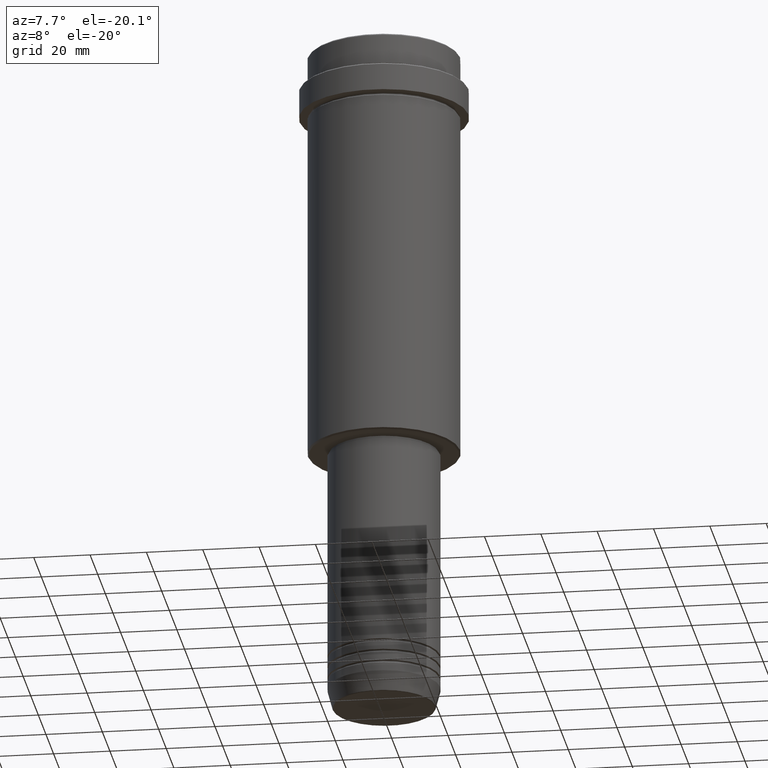
[diagram: clean part render]
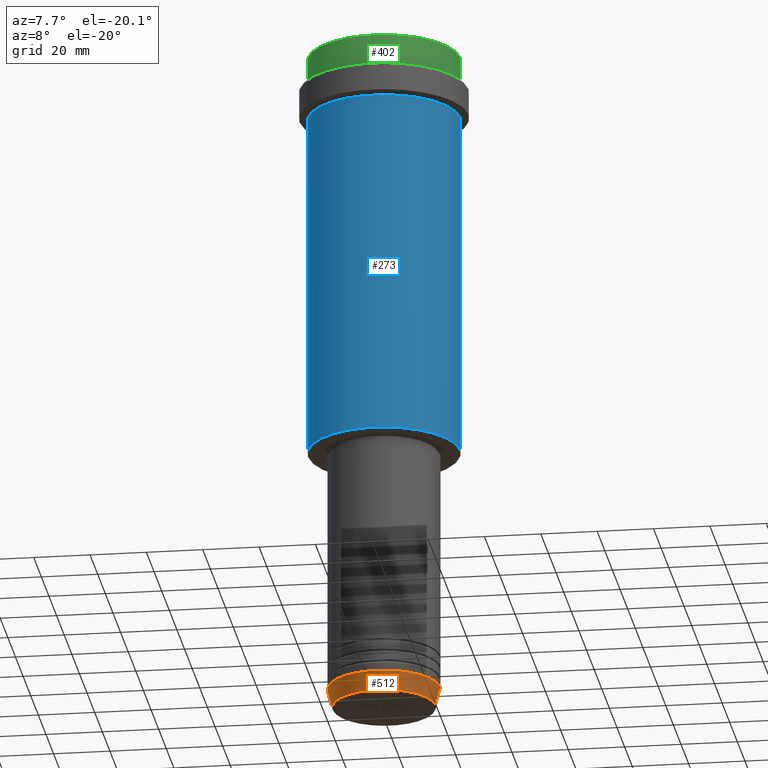
[diagram: same view with three faces highlighted in distinct colors, each labeled with its STEP entity id]
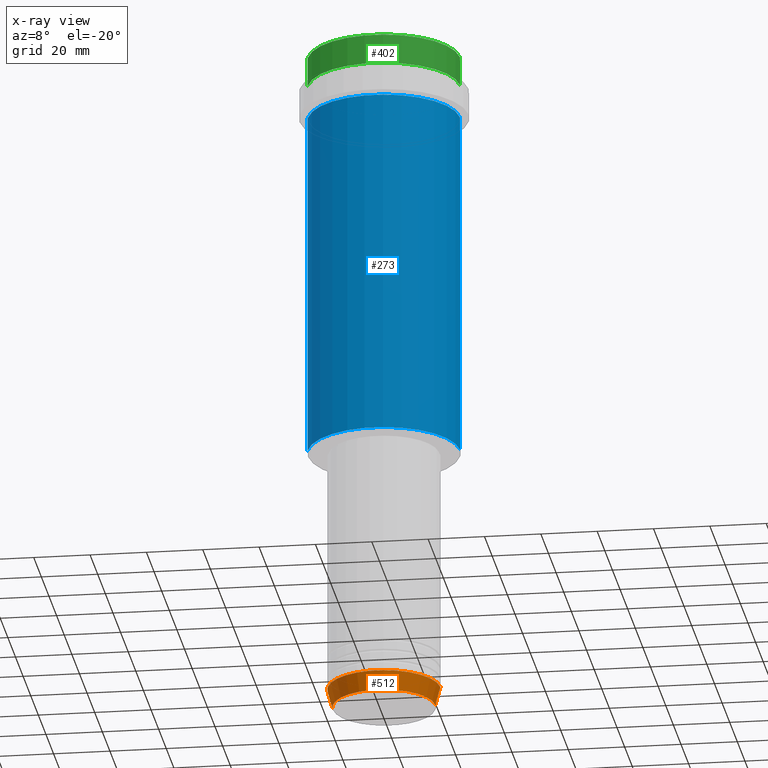
[diagram: x-ray of the same camera — body ghosted, the three highlighted faces saturated]
A machine part, auxiliary view with three faces highlighted in distinct colors.
The next image is the same camera in x-ray (body ghosted, the three faces saturated) — at least one of them is partly hidden behind the body in this view.
Their STEP definitions:

[orange] entity #512 — the highlighted conical surface has half-angle 15 deg.
#17 = DIRECTION ( 'NONE',  ( -0.000000000000000000, -0.000000000000000000, 1.000000000000000000 ) ) ;
#19 = CONICAL_SURFACE ( 'NONE', #219, 20.00000000000000000, 0.2617993877991500740 ) ;
#41 = VERTEX_POINT ( 'NONE', #1148 ) ;
#64 = EDGE_CURVE ( 'NONE', #41, #622, #810, .T. ) ;
#76 = EDGE_CURVE ( 'NONE', #1226, #622, #191, .T. ) ;
#105 = DIRECTION ( 'NONE',  ( -0.000000000000000000, -0.000000000000000000, 1.000000000000000000 ) ) ;
#191 = LINE ( 'NONE', #1294, #478 ) ;
#196 = DIRECTION ( 'NONE',  ( 1.000000000000000000, 0.000000000000000000, 0.000000000000000000 ) ) ;
#219 = AXIS2_PLACEMENT_3D ( 'NONE', #658, #17, #467 ) ;
#308 = DIRECTION ( 'NONE',  ( 0.2588190451025213501, 0.000000000000000000, 0.9659258262890680902 ) ) ;
#312 = AXIS2_PLACEMENT_3D ( 'NONE', #729, #756, #738 ) ;
#327 = VECTOR ( 'NONE', #1251, 1000.000000000000000 ) ;
#345 = CIRCLE ( 'NONE', #1121, 18.22365507213719482 ) ;
#436 = ORIENTED_EDGE ( 'NONE', *, *, #64, .F. ) ;
#467 = DIRECTION ( 'NONE',  ( 1.000000000000000000, 0.000000000000000000, 0.000000000000000000 ) ) ;
#478 = VECTOR ( 'NONE', #308, 1000.000000000000000 ) ;
#487 = LINE ( 'NONE', #692, #327 ) ;
#512 = ADVANCED_FACE ( 'NONE', ( #908 ), #19, .T. ) ;
#523 = CARTESIAN_POINT ( 'NONE',  ( 20.00000000000000000, 0.000000000000000000, -236.0000000000000284 ) ) ;
#571 = ORIENTED_EDGE ( 'NONE', *, *, #76, .T. ) ;
#604 = VERTEX_POINT ( 'NONE', #615 ) ;
#607 = EDGE_CURVE ( 'NONE', #604, #1226, #345, .T. ) ;
#615 = CARTESIAN_POINT ( 'NONE',  ( -18.22365507213719482, 2.340523841790264718E-15, -242.6294095225512990 ) ) ;
#622 = VERTEX_POINT ( 'NONE', #523 ) ;
#658 = CARTESIAN_POINT ( 'NONE',  ( 0.000000000000000000, 0.000000000000000000, -236.0000000000000284 ) ) ;
#692 = CARTESIAN_POINT ( 'NONE',  ( -20.00000000000000000, 2.449293598294706513E-15, -236.0000000000000284 ) ) ;
#729 = CARTESIAN_POINT ( 'NONE',  ( 0.000000000000000000, 0.000000000000000000, -236.0000000000000284 ) ) ;
#738 = DIRECTION ( 'NONE',  ( 1.000000000000000000, 0.000000000000000000, 0.000000000000000000 ) ) ;
#756 = DIRECTION ( 'NONE',  ( -0.000000000000000000, -0.000000000000000000, 1.000000000000000000 ) ) ;
#810 = CIRCLE ( 'NONE', #312, 20.00000000000000000 ) ;
#908 = FACE_OUTER_BOUND ( 'NONE', #1220, .T. ) ;
#923 = ORIENTED_EDGE ( 'NONE', *, *, #607, .T. ) ;
#1121 = AXIS2_PLACEMENT_3D ( 'NONE', #1188, #105, #196 ) ;
#1148 = CARTESIAN_POINT ( 'NONE',  ( -20.00000000000000000, 2.449293598294706513E-15, -236.0000000000000284 ) ) ;
#1188 = CARTESIAN_POINT ( 'NONE',  ( 0.000000000000000000, 0.000000000000000000, -242.6294095225512990 ) ) ;
#1220 = EDGE_LOOP ( 'NONE', ( #1304, #923, #571, #436 ) ) ;
#1226 = VERTEX_POINT ( 'NONE', #1354 ) ;
#1251 = DIRECTION ( 'NONE',  ( -0.2588190451025213501, 3.169619151431772337E-17, 0.9659258262890680902 ) ) ;
#1294 = CARTESIAN_POINT ( 'NONE',  ( 20.00000000000000000, 0.000000000000000000, -236.0000000000000284 ) ) ;
#1304 = ORIENTED_EDGE ( 'NONE', *, *, #1310, .F. ) ;
#1310 = EDGE_CURVE ( 'NONE', #604, #41, #487, .T. ) ;
#1354 = CARTESIAN_POINT ( 'NONE',  ( 18.22365507213719482, 0.000000000000000000, -242.6294095225512990 ) ) ;

[blue] entity #273 — the highlighted cylindrical surface (partial cylindrical patch) has radius 27 mm, axis along (-0, -0, 1).
#31 = VERTEX_POINT ( 'NONE', #1133 ) ;
#34 = CARTESIAN_POINT ( 'NONE',  ( 0.000000000000000000, 0.000000000000000000, -23.00000000000000000 ) ) ;
#46 = AXIS2_PLACEMENT_3D ( 'NONE', #34, #138, #559 ) ;
#63 = CIRCLE ( 'NONE', #419, 26.99999999999999645 ) ;
#77 = DIRECTION ( 'NONE',  ( -0.000000000000000000, -0.000000000000000000, 1.000000000000000000 ) ) ;
#126 = ORIENTED_EDGE ( 'NONE', *, *, #1336, .T. ) ;
#135 = VECTOR ( 'NONE', #77, 1000.000000000000000 ) ;
#138 = DIRECTION ( 'NONE',  ( -0.000000000000000000, -0.000000000000000000, 1.000000000000000000 ) ) ;
#165 = LINE ( 'NONE', #466, #1038 ) ;
#188 = VERTEX_POINT ( 'NONE', #550 ) ;
#213 = CARTESIAN_POINT ( 'NONE',  ( -26.99999999999999645, 3.306546357697853339E-15, 0.000000000000000000 ) ) ;
#214 = VERTEX_POINT ( 'NONE', #720 ) ;
#235 = LINE ( 'NONE', #213, #135 ) ;
#273 = ADVANCED_FACE ( 'NONE', ( #1404 ), #295, .T. ) ;
#275 = ORIENTED_EDGE ( 'NONE', *, *, #646, .T. ) ;
#295 = CYLINDRICAL_SURFACE ( 'NONE', #911, 26.99999999999999645 ) ;
#333 = DIRECTION ( 'NONE',  ( -1.000000000000000000, 0.000000000000000000, 0.000000000000000000 ) ) ;
#383 = DIRECTION ( 'NONE',  ( -0.000000000000000000, -0.000000000000000000, 1.000000000000000000 ) ) ;
#419 = AXIS2_PLACEMENT_3D ( 'NONE', #1085, #1337, #333 ) ;
#466 = CARTESIAN_POINT ( 'NONE',  ( 26.99999999999999645, 0.000000000000000000, 0.000000000000000000 ) ) ;
#550 = CARTESIAN_POINT ( 'NONE',  ( -26.99999999999999645, 3.306546357697853339E-15, -23.00000000000000000 ) ) ;
#559 = DIRECTION ( 'NONE',  ( 1.000000000000000000, 0.000000000000000000, 0.000000000000000000 ) ) ;
#646 = EDGE_CURVE ( 'NONE', #910, #31, #63, .T. ) ;
#688 = DIRECTION ( 'NONE',  ( -0.000000000000000000, -0.000000000000000000, 1.000000000000000000 ) ) ;
#714 = ORIENTED_EDGE ( 'NONE', *, *, #1082, .F. ) ;
#720 = CARTESIAN_POINT ( 'NONE',  ( 26.99999999999999645, 0.000000000000000000, -23.00000000000000000 ) ) ;
#910 = VERTEX_POINT ( 'NONE', #1382 ) ;
#911 = AXIS2_PLACEMENT_3D ( 'NONE', #1275, #383, #939 ) ;
#939 = DIRECTION ( 'NONE',  ( 1.000000000000000000, 0.000000000000000000, 0.000000000000000000 ) ) ;
#971 = EDGE_LOOP ( 'NONE', ( #1402, #275, #126, #714 ) ) ;
#1038 = VECTOR ( 'NONE', #688, 1000.000000000000000 ) ;
#1060 = EDGE_CURVE ( 'NONE', #910, #188, #235, .T. ) ;
#1082 = EDGE_CURVE ( 'NONE', #188, #214, #1263, .T. ) ;
#1085 = CARTESIAN_POINT ( 'NONE',  ( 0.000000000000000000, 0.000000000000000000, -147.5000000000000853 ) ) ;
#1133 = CARTESIAN_POINT ( 'NONE',  ( 26.99999999999999645, 0.000000000000000000, -147.5000000000000853 ) ) ;
#1263 = CIRCLE ( 'NONE', #46, 26.99999999999999645 ) ;
#1275 = CARTESIAN_POINT ( 'NONE',  ( 0.000000000000000000, 0.000000000000000000, 0.000000000000000000 ) ) ;
#1336 = EDGE_CURVE ( 'NONE', #31, #214, #165, .T. ) ;
#1337 = DIRECTION ( 'NONE',  ( -0.000000000000000000, -0.000000000000000000, 1.000000000000000000 ) ) ;
#1382 = CARTESIAN_POINT ( 'NONE',  ( -26.99999999999999645, 3.306546357697853339E-15, -147.5000000000000853 ) ) ;
#1402 = ORIENTED_EDGE ( 'NONE', *, *, #1060, .F. ) ;
#1404 = FACE_OUTER_BOUND ( 'NONE', #971, .T. ) ;

[green] entity #402 — the highlighted cylindrical surface (partial cylindrical patch) has radius 27 mm, axis along (-0, -0, 1).
#8 = ORIENTED_EDGE ( 'NONE', *, *, #956, .F. ) ;
#18 = ORIENTED_EDGE ( 'NONE', *, *, #860, .T. ) ;
#32 = FACE_OUTER_BOUND ( 'NONE', #719, .T. ) ;
#109 = CARTESIAN_POINT ( 'NONE',  ( 26.99999999999999645, 0.000000000000000000, -11.00000000000000178 ) ) ;
#128 = CARTESIAN_POINT ( 'NONE',  ( 0.000000000000000000, 0.000000000000000000, 0.000000000000000000 ) ) ;
#189 = LINE ( 'NONE', #1266, #195 ) ;
#195 = VECTOR ( 'NONE', #280, 1000.000000000000000 ) ;
#226 = CARTESIAN_POINT ( 'NONE',  ( 0.000000000000000000, 0.000000000000000000, -11.00000000000000178 ) ) ;
#274 = CARTESIAN_POINT ( 'NONE',  ( 0.000000000000000000, 0.000000000000000000, -0.5000000000000593969 ) ) ;
#278 = LINE ( 'NONE', #948, #1143 ) ;
#280 = DIRECTION ( 'NONE',  ( -0.000000000000000000, -0.000000000000000000, 1.000000000000000000 ) ) ;
#320 = CARTESIAN_POINT ( 'NONE',  ( -26.99999999999999645, 3.306546357697853339E-15, -11.00000000000000178 ) ) ;
#322 = ORIENTED_EDGE ( 'NONE', *, *, #482, .T. ) ;
#367 = AXIS2_PLACEMENT_3D ( 'NONE', #128, #672, #1313 ) ;
#371 = CARTESIAN_POINT ( 'NONE',  ( -26.99999999999999645, 3.306546357697853339E-15, -0.5000000000000593969 ) ) ;
#402 = ADVANCED_FACE ( 'NONE', ( #32 ), #874, .T. ) ;
#406 = CARTESIAN_POINT ( 'NONE',  ( 26.99999999999999645, 0.000000000000000000, -0.5000000000000593969 ) ) ;
#413 = DIRECTION ( 'NONE',  ( 1.000000000000000000, 0.000000000000000000, 0.000000000000000000 ) ) ;
#482 = EDGE_CURVE ( 'NONE', #524, #798, #278, .T. ) ;
#524 = VERTEX_POINT ( 'NONE', #109 ) ;
#531 = VERTEX_POINT ( 'NONE', #320 ) ;
#672 = DIRECTION ( 'NONE',  ( -0.000000000000000000, -0.000000000000000000, 1.000000000000000000 ) ) ;
#719 = EDGE_LOOP ( 'NONE', ( #8, #1287, #322, #18 ) ) ;
#789 = VERTEX_POINT ( 'NONE', #371 ) ;
#798 = VERTEX_POINT ( 'NONE', #406 ) ;
#860 = EDGE_CURVE ( 'NONE', #798, #789, #955, .T. ) ;
#874 = CYLINDRICAL_SURFACE ( 'NONE', #367, 26.99999999999999645 ) ;
#948 = CARTESIAN_POINT ( 'NONE',  ( 26.99999999999999645, 0.000000000000000000, 0.000000000000000000 ) ) ;
#955 = CIRCLE ( 'NONE', #1145, 26.99999999999999645 ) ;
#956 = EDGE_CURVE ( 'NONE', #531, #789, #189, .T. ) ;
#1017 = AXIS2_PLACEMENT_3D ( 'NONE', #226, #1102, #1123 ) ;
#1062 = DIRECTION ( 'NONE',  ( 0.000000000000000000, 0.000000000000000000, -1.000000000000000000 ) ) ;
#1068 = EDGE_CURVE ( 'NONE', #531, #524, #1302, .T. ) ;
#1102 = DIRECTION ( 'NONE',  ( -0.000000000000000000, -0.000000000000000000, 1.000000000000000000 ) ) ;
#1123 = DIRECTION ( 'NONE',  ( 1.000000000000000000, 0.000000000000000000, 0.000000000000000000 ) ) ;
#1143 = VECTOR ( 'NONE', #1379, 1000.000000000000000 ) ;
#1145 = AXIS2_PLACEMENT_3D ( 'NONE', #274, #1062, #413 ) ;
#1266 = CARTESIAN_POINT ( 'NONE',  ( -26.99999999999999645, 3.306546357697853339E-15, 0.000000000000000000 ) ) ;
#1287 = ORIENTED_EDGE ( 'NONE', *, *, #1068, .T. ) ;
#1302 = CIRCLE ( 'NONE', #1017, 26.99999999999999645 ) ;
#1313 = DIRECTION ( 'NONE',  ( 1.000000000000000000, 0.000000000000000000, 0.000000000000000000 ) ) ;
#1379 = DIRECTION ( 'NONE',  ( -0.000000000000000000, -0.000000000000000000, 1.000000000000000000 ) ) ;